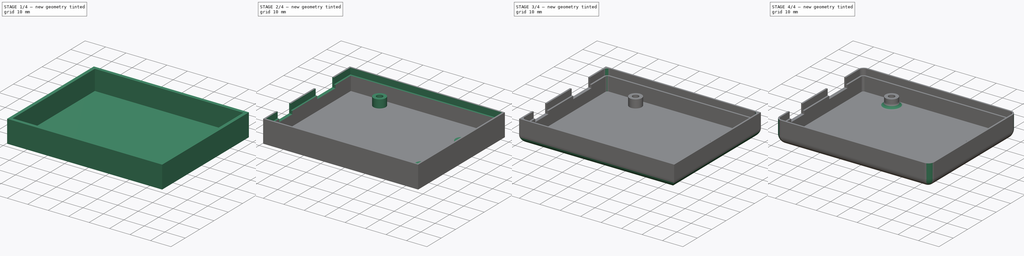
[diagram: build sequence overview — one tinted view per stage of 4, left to right]
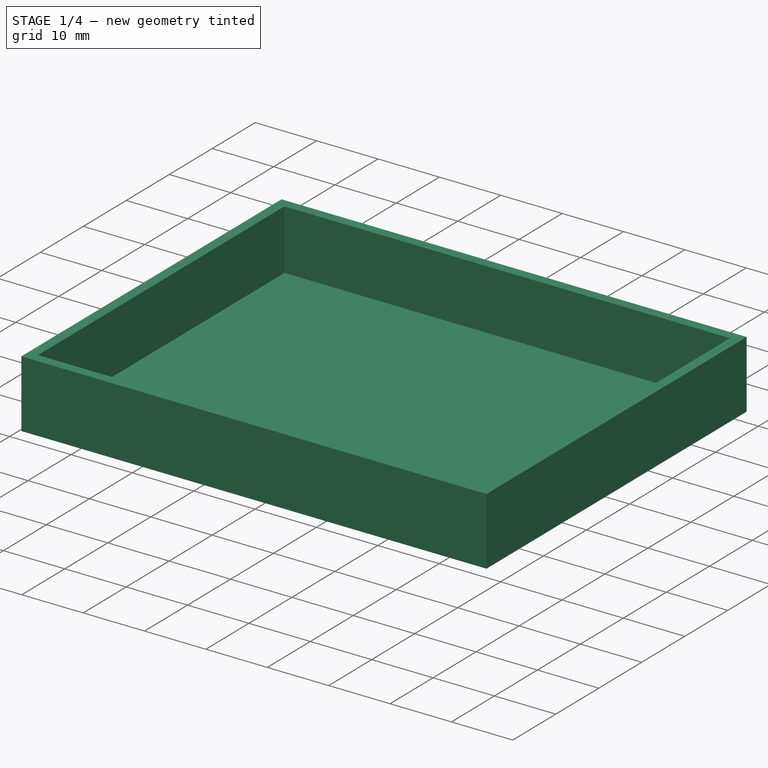
[diagram: stage 1 of 4 — iso view after this stage's code; geometry added in this stage tinted green]
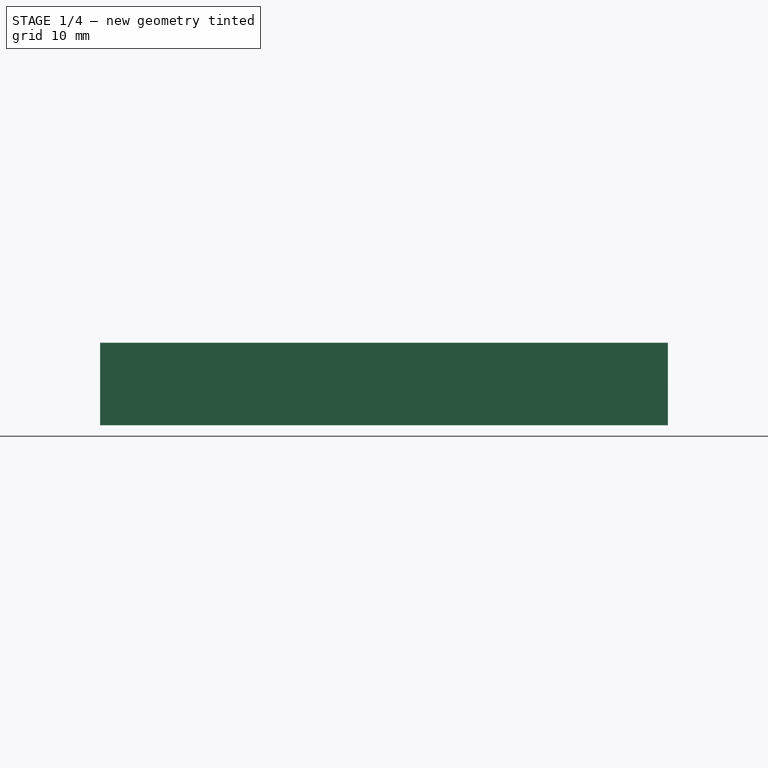
[diagram: stage 1 of 4 — front view after this stage's code; geometry added in this stage tinted green]
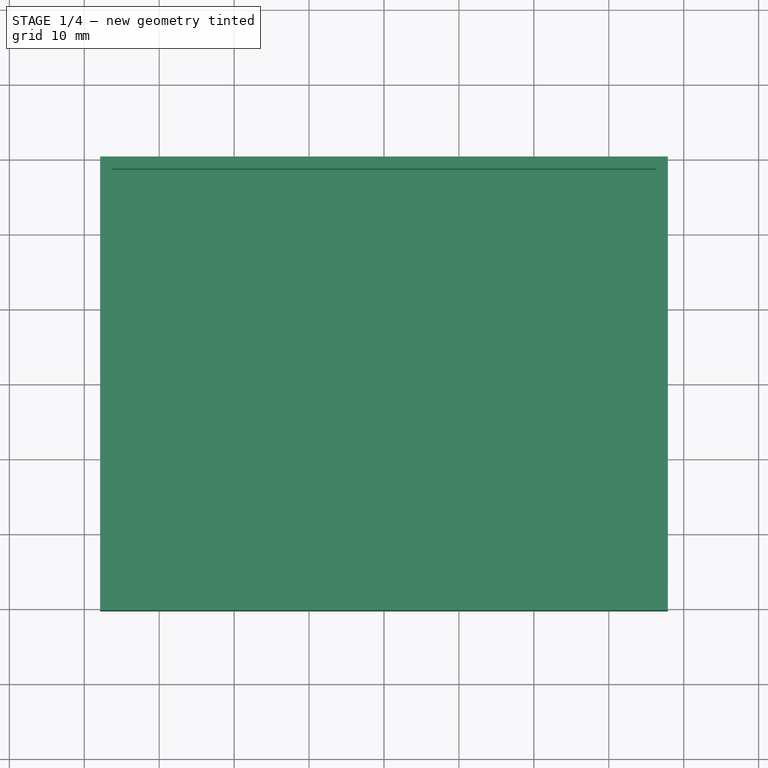
[diagram: stage 1 of 4 — top view after this stage's code; geometry added in this stage tinted green]
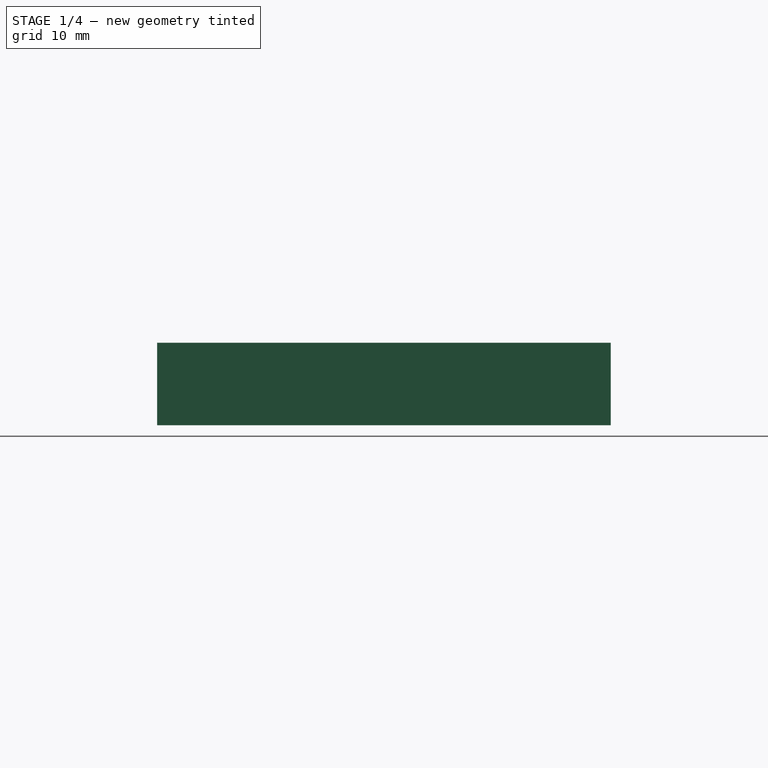
[diagram: stage 1 of 4 — right view after this stage's code; geometry added in this stage tinted green]
FCSTD DOCUMENT  (FreeCAD 0.17R11284 (Git))
Label: Arduino_Uno_spreadsheet
License: All rights reserved
LicenseURL: http://en.wikipedia.org/wiki/All_rights_reserved
objects: Sketcher::SketchObject×6, PartDesign::Fillet×5, PartDesign::Pocket×3, PartDesign::Plane×3, PartDesign::Pad×2, Spreadsheet::Sheet×1, TechDraw::DrawSVGTemplate×1, PartDesign::Body×1, App::Part×1, TechDraw::DrawViewPart×1, TechDraw::DrawViewSection×1, TechDraw::DrawPage×1
note: 25 computed .brp shape members not serialized (recipe doc carries the construction recipe); baked Part::Feature solids carry a one-line shape summary decoded from their .brp

FEATURE [Sketcher::SketchObject] Sketch  label="Arduino Outer Limit"
  MapMode = 5
  Support = -> [XY_Plane001]
  sketch-geometry (4):
    g0: LineSegment StartX=-34.29 StartY=26.67 StartZ=0 EndX=34.29 EndY=26.67 EndZ=0
    g1: LineSegment StartX=34.29 StartY=26.67 StartZ=0 EndX=34.29 EndY=-26.67 EndZ=0
    g2: LineSegment StartX=34.29 StartY=-26.67 StartZ=0 EndX=-34.29 EndY=-26.67 EndZ=0
    g3: LineSegment StartX=-34.29 StartY=-26.67 StartZ=0 EndX=-34.29 EndY=26.67 EndZ=0
  constraints (12):
    c: Coincident(g0,g1)
    c: Coincident(g1,g2)
    c: Coincident(g2,g3)
    c: Coincident(g3,g0)
    c: Horizontal(g0)
    c: Horizontal(g2)
    c: Vertical(g1)
    c: Vertical(g3)
    c: DistanceY(g3,g3) = 53.34
    c: DistanceX(g2,g2) = 68.58
    c: Symmetric(g2,g1,g-2)
    c: Symmetric(g0,g2,g-1)
FEATURE [Sketcher::SketchObject] Sketch001  label="Outer Shell"
  ExternalGeometry = -> [Sketch]
  MapMode = 5
  Support = -> [XY_Plane001]
  sketch-geometry (4):
    g0: LineSegment StartX=-37.89 StartY=30.27 StartZ=0 EndX=37.89 EndY=30.27 EndZ=0
    g1: LineSegment StartX=37.89 StartY=30.27 StartZ=0 EndX=37.89 EndY=-30.27 EndZ=0
    g2: LineSegment StartX=37.89 StartY=-30.27 StartZ=0 EndX=-37.89 EndY=-30.27 EndZ=0
    g3: LineSegment StartX=-37.89 StartY=-30.27 StartZ=0 EndX=-37.89 EndY=30.27 EndZ=0
  constraints (13):
    c: Coincident(g0,g1)
    c: Coincident(g1,g2)
    c: Coincident(g2,g3)
    c: Coincident(g3,g0)
    c: Horizontal(g0)
    c: Horizontal(g2)
    c: Vertical(g1)
    c: Vertical(g3)
    c: Symmetric(g0,g0,g-2)
    c: Symmetric(g0,g2,g-1)
    c: DistanceX(g0,g-1) = 37.89
    c: DistanceY(g-1,g0) = 30.27
    c: DistanceY(g-3,g0) = 3.6
FEATURE [PartDesign::Pad] Pad  label="OuterShell"
  Length = 11
  Length2 = 1
  Profile = -> Sketch001
  Type = 0
FEATURE [Sketcher::SketchObject] Sketch002
  MapMode = 5
  Placement = pos=(0,0,11) rot=(0,0,1;0rad)
  Support = -> [Pad]
  sketch-geometry (4):
    g0: LineSegment StartX=-36.29 StartY=28.67 StartZ=0 EndX=36.29 EndY=28.67 EndZ=0
    g1: LineSegment StartX=36.29 StartY=28.67 StartZ=0 EndX=36.29 EndY=-28.67 EndZ=0
    g2: LineSegment StartX=36.29 StartY=-28.67 StartZ=0 EndX=-36.29 EndY=-28.67 EndZ=0
    g3: LineSegment StartX=-36.29 StartY=-28.67 StartZ=0 EndX=-36.29 EndY=28.67 EndZ=0
  constraints (12):
    c: Coincident(g0,g1)
    c: Coincident(g1,g2)
    c: Coincident(g2,g3)
    c: Coincident(g3,g0)
    c: Horizontal(g0)
    c: Horizontal(g2)
    c: Vertical(g1)
    c: Vertical(g3)
    c: Symmetric(g0,g2,g-1)
    c: Symmetric(g0,g0,g-2)
    c: DistanceX(g0,g-1) = 36.29
    c: DistanceY(g-1,g0) = 28.67
FEATURE [PartDesign::Pocket] Pocket
  Length = 9.8
  Profile = -> Sketch002
  Type = 0
  expr: Length = OuterShell.Length - 1.2mm
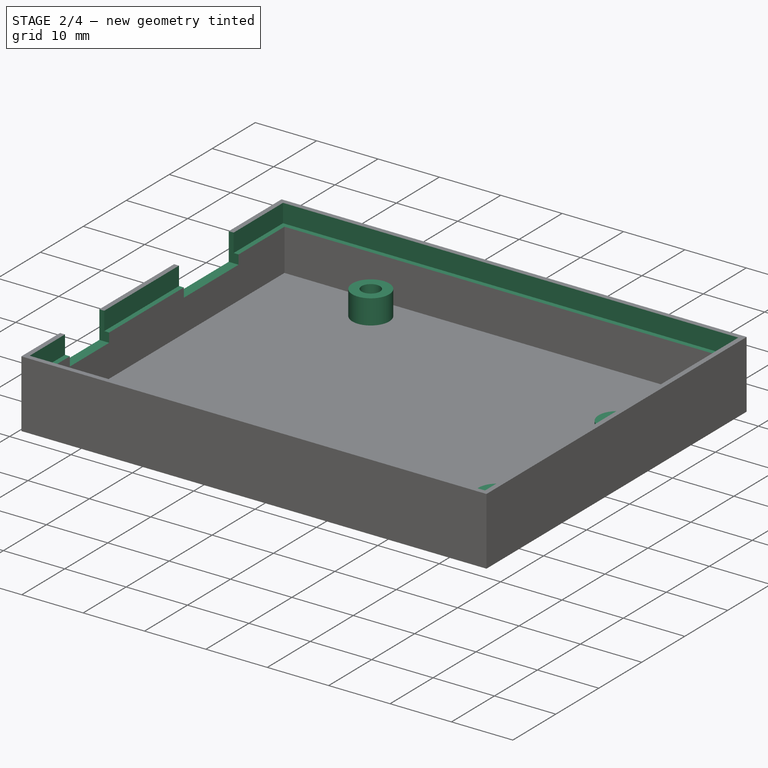
[diagram: stage 2 of 4 — iso view after this stage's code; geometry added in this stage tinted green]
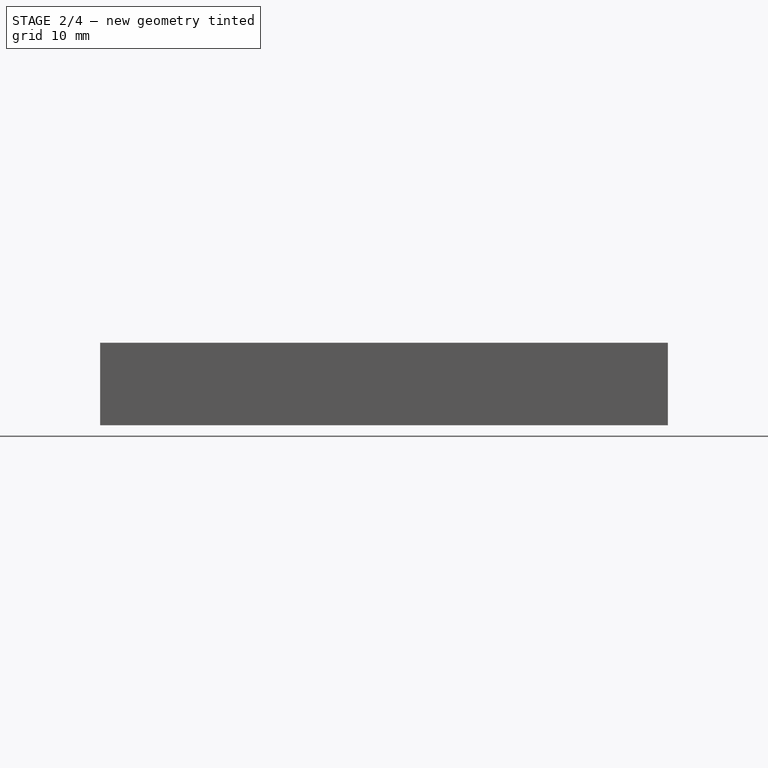
[diagram: stage 2 of 4 — front view after this stage's code; geometry added in this stage tinted green]
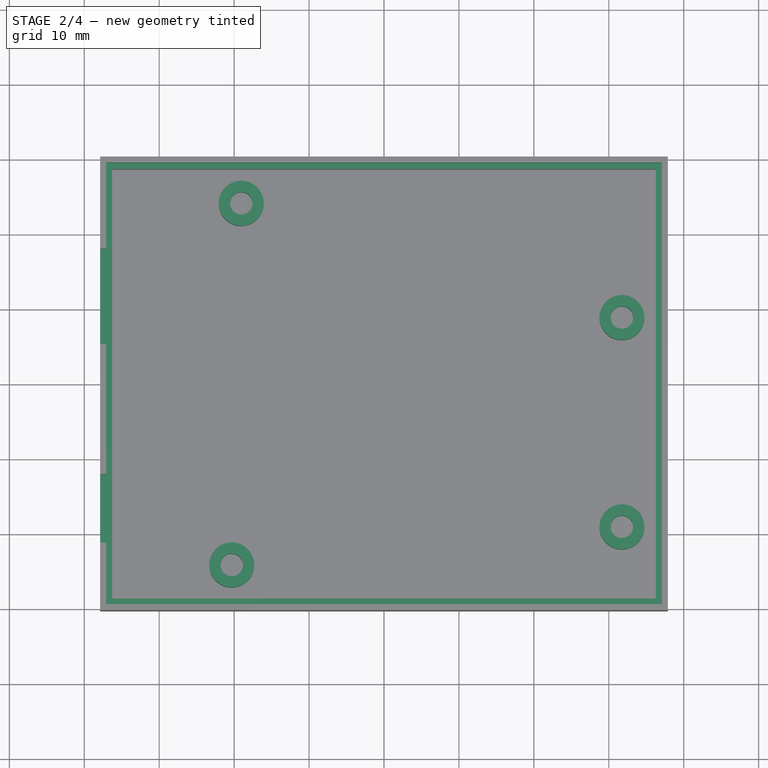
[diagram: stage 2 of 4 — top view after this stage's code; geometry added in this stage tinted green]
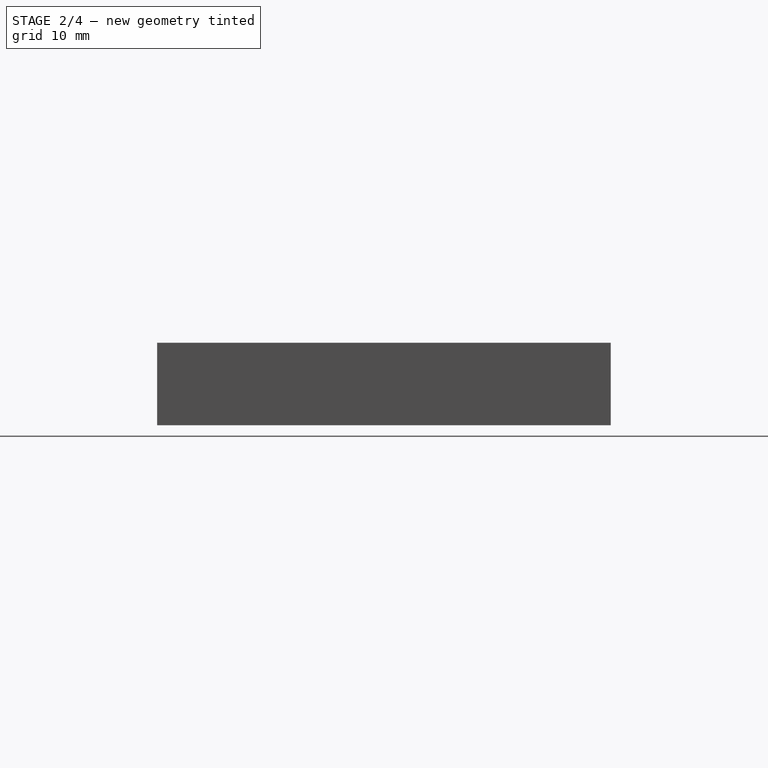
[diagram: stage 2 of 4 — right view after this stage's code; geometry added in this stage tinted green]
FEATURE [Spreadsheet::Sheet] Spreadsheet
  cells = A1=Object; B1=Measurement; C1=Alias Name; D1=Notes; A2=Nozzle Size; B2==0.40000000000000002mm; A3=Circuit Board Thickness; B3(BoardThickness)==1.54mm; C3="BoardThickness"; D3=Exactly 1/16th of an Inch; A4=Nozzle Size  x 4; B4(WallThickness)==B2 * 4; C4="WallThickness"; A5=Floor; B5(Floor)==1.2mm; C5="Floor"; A6=Wall Offset From Board; B6(BoardClearance)=2; C6="BoardClearance"; A7=Post Height; B7(PostHeight)==4mm; C7="PostHeight"; A8=Hole Diameter; B8==0.125in; A9=Screw Hole Clearance; B9=1; A10=Radius; B10(HoleRadius)==B8 / 2; C10="HoleRadius"; A11=Radius + Clearance; A13=Clearance; B13(Clearance)==0.25mm; C13="Clearance"; A15=Sketch Name; B15=Sketch Names; A16=Sketch Label; B16==Sketch.Label; C16==<<Arduino Outer Limit>>.Label; A17=Sketch001 Label; B17==Sketch001.Label; C17==<<Outer Shell>>.Label; A18=Sketch002 Label; B18==Sketch002.Label; A19=Sketch003 Label; B19==<<Hole Positions>>.Label; C19==<<Hole Positions>>.Label; A20=Sketch004 Label; B20==Sketch004.Label; A21=Sketch005 Label; B21==<<Lid Lip>>.Label; C21==<<Lid Lip>>.Label; A23=Height of Opening ( Floor + Post Height + Board Thickness - Clearance ); B23(OpeningPlaneHeight)==Floor + PostHeight + BoardThickness - Clearance; C23="OpeningPlaneHeight"
FEATURE [Sketcher::SketchObject] Sketch003  label="Hole Positions"
  ExternalGeometry = -> [Sketch]
  MapMode = 5
  Placement = pos=(0,0,1.2) rot=(0,0,1;0rad)
  Support = -> [Pocket]
  expr: Constraints[0] = 3mm
  sketch-geometry (8):
    g0: Circle CenterX=-19.05 CenterY=24.13 CenterZ=0 NormalX=0 NormalY=0 NormalZ=1 Radius=3
    g1: Circle CenterX=31.75 CenterY=8.89 CenterZ=0 NormalX=0 NormalY=0 NormalZ=1 Radius=3
    g2: Circle CenterX=-20.32 CenterY=-24.13 CenterZ=0 NormalX=0 NormalY=0 NormalZ=1 Radius=3
    g3: Circle CenterX=31.75 CenterY=-19.05 CenterZ=0 NormalX=0 NormalY=0 NormalZ=1 Radius=3
    g4: Circle CenterX=-19.05 CenterY=24.13 CenterZ=0 NormalX=0 NormalY=0 NormalZ=1 Radius=1.5
    g5: Circle CenterX=31.75 CenterY=8.89 CenterZ=0 NormalX=0 NormalY=0 NormalZ=1 Radius=1.5
    g6: Circle CenterX=-20.32 CenterY=-24.13 CenterZ=0 NormalX=0 NormalY=0 NormalZ=1 Radius=1.5
    g7: Circle CenterX=31.75 CenterY=-19.05 CenterZ=0 NormalX=0 NormalY=0 NormalZ=1 Radius=1.5
  constraints (20):
    c: Radius(g0) = 3
    c: Equal(g0,g2)
    c: Equal(g0,g3)
    c: Equal(g0,g1)
    c: DistanceY(g3,g1) = 27.94
    c: DistanceX(g0,g1) = 50.8
    c: DistanceX(g2,g0) = 1.27
    c: DistanceY(g2,g3) = 5.08
    c: DistanceY(g-3,g2) = 2.54
    c: DistanceY(g1,g0) = 15.24
    c: DistanceX(g0,g3) = 50.8
    c: Coincident(g4,g0)
    c: Coincident(g5,g1)
    c: Coincident(g6,g2)
    c: Coincident(g7,g3)
    c: Radius(g4) = 1.5
    c: Equal(g4,g5)
    c: Equal(g4,g7)
    c: Equal(g4,g6)
    c: DistanceX(g-3,g2) = 13.97
FEATURE [PartDesign::Plane] DatumPlane
  MapMode = 5
  Placement = pos=(0,0,11) rot=(0,0,1;0rad)
  expr: Placement.Base.z = OuterShell.Length
FEATURE [Sketcher::SketchObject] Sketch005  label="Lid Lip"
  MapMode = 5
  Placement = pos=(0,0,11) rot=(0,0,1;0rad)
  Support = -> [DatumPlane]
  sketch-geometry (4):
    g0: LineSegment StartX=-37.09 StartY=29.47 StartZ=0 EndX=37.09 EndY=29.47 EndZ=0
    g1: LineSegment StartX=37.09 StartY=29.47 StartZ=0 EndX=37.09 EndY=-29.47 EndZ=0
    g2: LineSegment StartX=37.09 StartY=-29.47 StartZ=0 EndX=-37.09 EndY=-29.47 EndZ=0
    g3: LineSegment StartX=-37.09 StartY=-29.47 StartZ=0 EndX=-37.09 EndY=29.47 EndZ=0
  constraints (11):
    c: Coincident(g0,g1)
    c: Coincident(g1,g2)
    c: Horizontal(g0)
    c: Horizontal(g2)
    c: Vertical(g1)
    c: Coincident(g3,g0)
    c: Coincident(g3,g2)
    c: Symmetric(g2,g1,g-2)
    c: Symmetric(g0,g2,g-1)
    c: DistanceX(g0,g-1) = 37.09
    c: DistanceY(g-1,g0) = 29.47
FEATURE [PartDesign::Pocket] Pocket001  label="Lid Lip001"
  BaseFeature = -> Pocket
  Length = 3
  Profile = -> Sketch005
  Type = 0
FEATURE [PartDesign::Pad] Pad001  label="Posts"
  BaseFeature = -> Pocket001
  Length = 4
  Length2 = 100
  Profile = -> Sketch003
  Type = 0
FEATURE [TechDraw::DrawSVGTemplate] Template  label=" "
  EditableTexts = Designed_by_Name=Designed by Name; Drawing_number=Drawing number; FC-Date=Date; FC-SC=Scale; FC-SH=Sheet; FC-Title=Title; Subtitle=Subtitle; Weight=Weight
  Height = 215.9
  Orientation = 1
  Width = 279.4
FEATURE [PartDesign::Plane] DatumPlane001
  MapMode = 5
  Placement = pos=(0,0,5.2) rot=(0,0,1;0rad)
FEATURE [PartDesign::Plane] DatumPlane002
  MapMode = 5
  Placement = pos=(-37.89,0,0) rot=(0.57735,-0.57735,-0.57735;2.0944rad)
  Support = -> [Pad001]
FEATURE [Sketcher::SketchObject] Sketch004
  MapMode = 5
  Placement = pos=(-37.89,0,0) rot=(0.57735,-0.57735,-0.57735;2.0944rad)
  Support = -> [Pad001]
  sketch-geometry (8):
    g0: LineSegment StartX=-17.98 StartY=17.29 StartZ=0 EndX=-5.26 EndY=17.29 EndZ=0
    g1: LineSegment StartX=-5.26 StartY=17.29 StartZ=0 EndX=-5.26 EndY=6.49 EndZ=0
    g2: LineSegment StartX=-5.26 StartY=6.49 StartZ=0 EndX=-17.98 EndY=6.49 EndZ=0
    g3: LineSegment StartX=-17.98 StartY=6.49 StartZ=0 EndX=-17.98 EndY=17.29 EndZ=0
    g4: LineSegment StartX=12.12 StartY=17.29 StartZ=0 EndX=21.26 EndY=17.29 EndZ=0
    g5: LineSegment StartX=21.26 StartY=17.29 StartZ=0 EndX=21.26 EndY=6.49 EndZ=0
    g6: LineSegment StartX=21.26 StartY=6.49 StartZ=0 EndX=12.12 EndY=6.49 EndZ=0
    g7: LineSegment StartX=12.12 StartY=6.49 StartZ=0 EndX=12.12 EndY=17.29 EndZ=0
  constraints (23):
    c: Coincident(g0,g1)
    c: Coincident(g1,g2)
    c: Coincident(g3,g0)
    c: Horizontal(g0)
    c: Horizontal(g2)
    c: Vertical(g1)
    c: Vertical(g3)
    c: Coincident(g4,g5)
    c: Coincident(g5,g6)
    c: Coincident(g6,g7)
    c: Coincident(g7,g4)
    c: Horizontal(g4)
    c: Horizontal(g6)
    c: Vertical(g5)
    c: Vertical(g7)
    c: Coincident(g2,g3)
    c: DistanceY(g5,g5) = 10.8
    c: DistanceX(g4,g4) = 9.14
    c: DistanceX(g0,g0) = 12.72
    c: DistanceX(g1,g6) = 17.38
    c: Equal(g1,g7)
    c: DistanceY(g-1,g5) = 6.49
    c: DistanceY(g-1,g1) = 6.49
FEATURE [PartDesign::Pocket] Pocket002
  BaseFeature = -> Pad001
  Length = 5
  Profile = -> Sketch004
  Type = 0
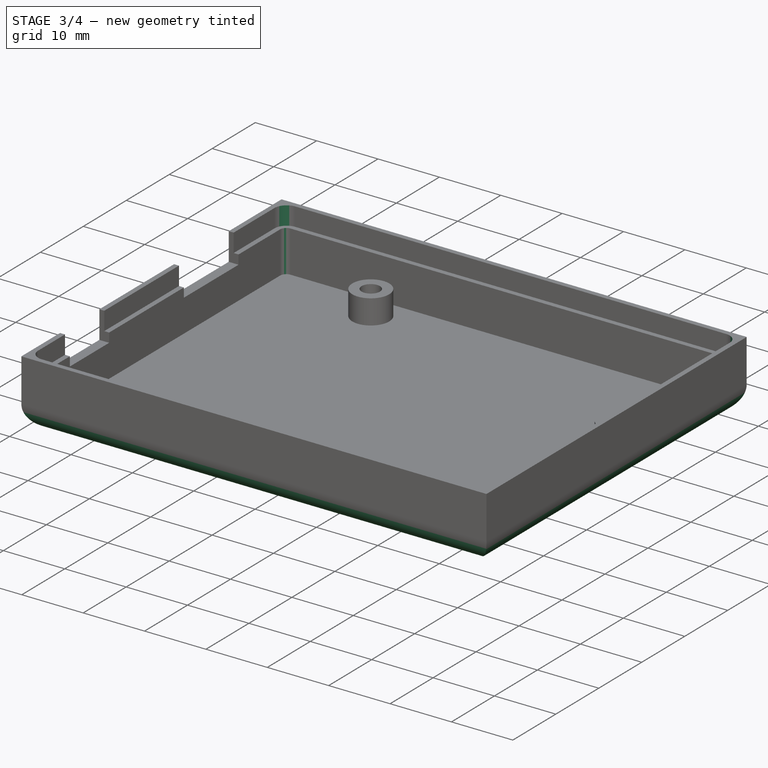
[diagram: stage 3 of 4 — iso view after this stage's code; geometry added in this stage tinted green]
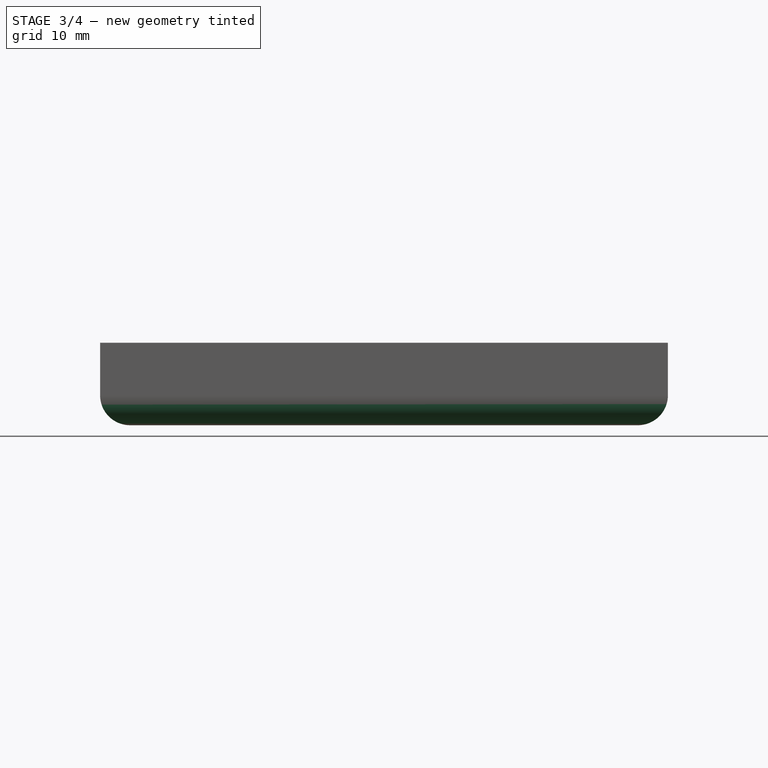
[diagram: stage 3 of 4 — front view after this stage's code; geometry added in this stage tinted green]
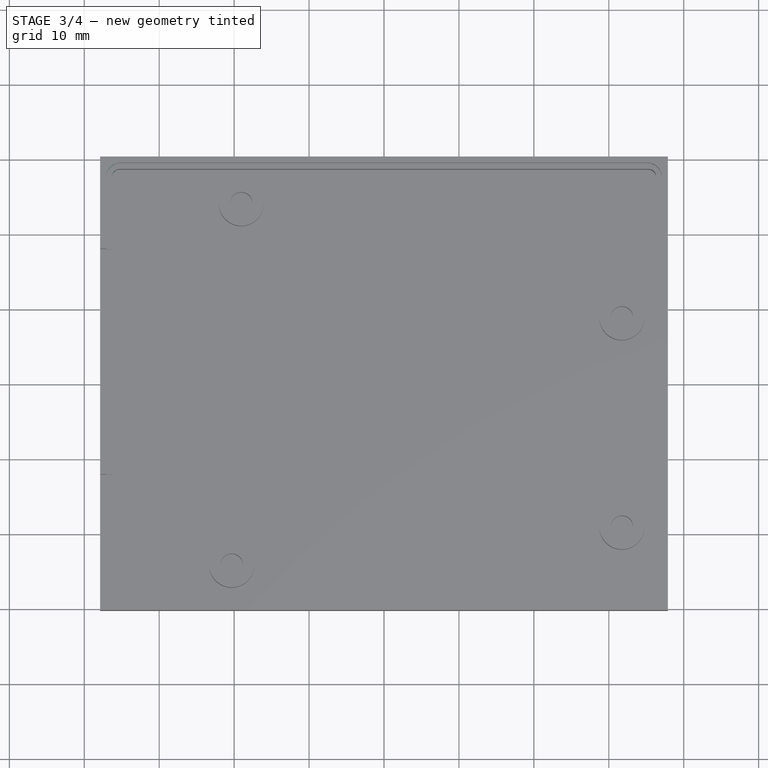
[diagram: stage 3 of 4 — top view after this stage's code; geometry added in this stage tinted green]
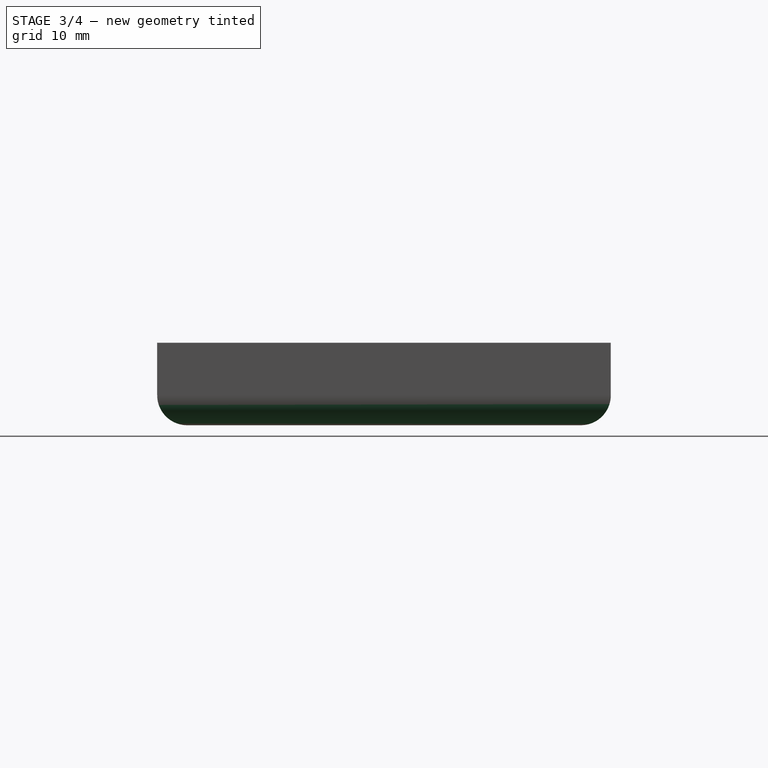
[diagram: stage 3 of 4 — right view after this stage's code; geometry added in this stage tinted green]
FEATURE [PartDesign::Fillet] Fillet
  Base = -> Pocket002 [Face4]
  BaseFeature = -> Pocket002
  Radius = 4
FEATURE [PartDesign::Fillet] Fillet001
  Base = -> Fillet [Edge76,Edge78,Edge74,Edge72]
  BaseFeature = -> Fillet
  Radius = 1
FEATURE [PartDesign::Fillet] Fillet002
  Base = -> Fillet001 [Edge48,Edge36,Edge40,Edge44]
  BaseFeature = -> Fillet001
  Radius = 2
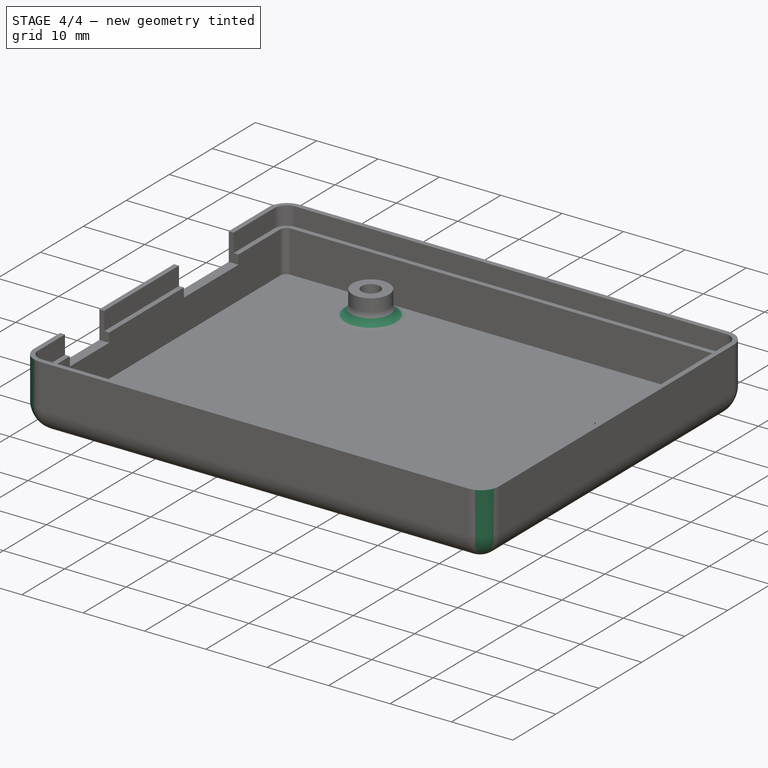
[diagram: stage 4 of 4 — iso view after this stage's code; geometry added in this stage tinted green]
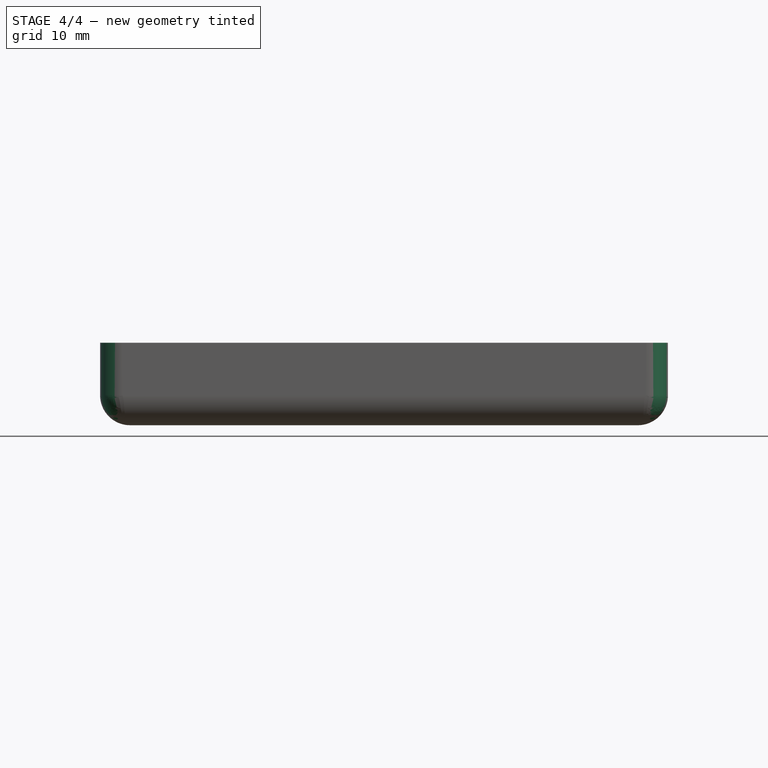
[diagram: stage 4 of 4 — front view after this stage's code; geometry added in this stage tinted green]
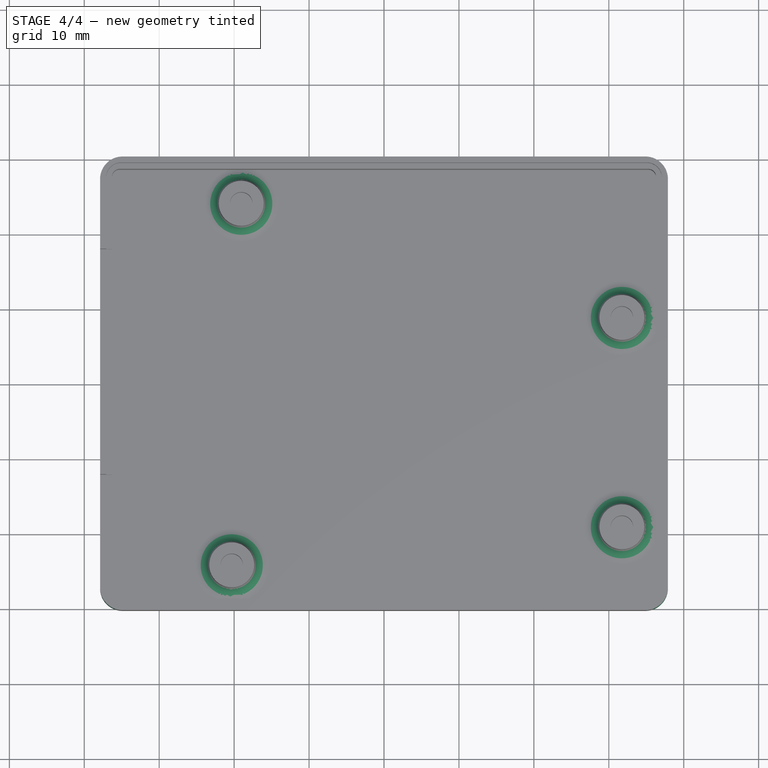
[diagram: stage 4 of 4 — top view after this stage's code; geometry added in this stage tinted green]
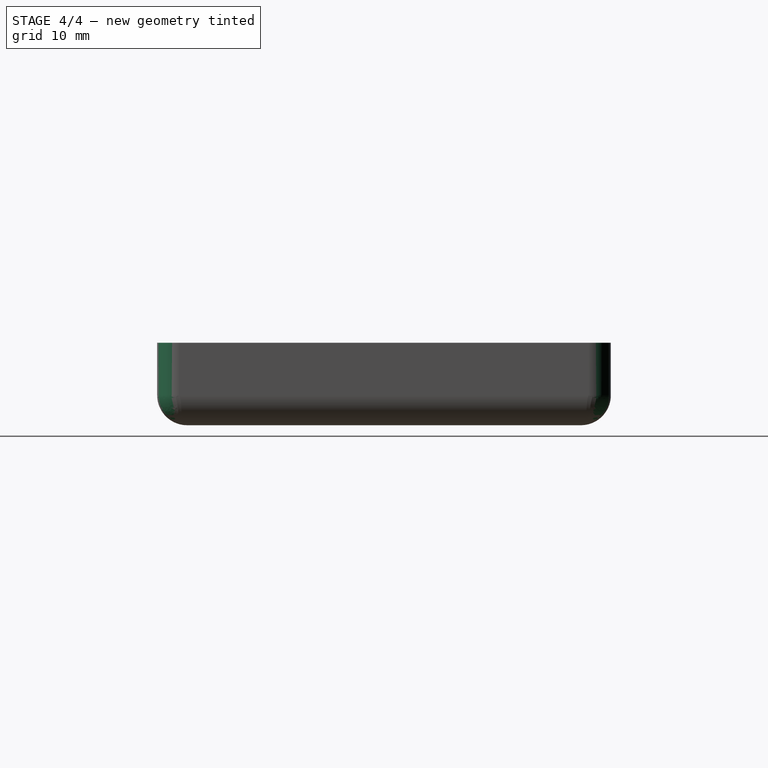
[diagram: stage 4 of 4 — right view after this stage's code; geometry added in this stage tinted green]
FEATURE [PartDesign::Fillet] Fillet003
  Base = -> Fillet002 [Edge76,Edge98,Edge96,Edge74]
  BaseFeature = -> Fillet002
  Radius = 3
FEATURE [PartDesign::Fillet] Fillet004
  Base = -> Fillet003 [Edge128,Edge127,Edge126,Edge125]
  BaseFeature = -> Fillet003
  Radius = 2
FEATURE [PartDesign::Body] Body
  Group = -> [Sketch,Sketch001,Pad,Sketch002,Pocket,Sketch003,Sketch004,DatumPlane,Sketch005,Pocket001,Pad001,DatumPlane001,DatumPlane002,Pocket002,Fillet,Fillet001,Fillet002,Fillet003,Fillet004]
  Origin = -> BodyOrigin
  Tip = -> Fillet004
FEATURE [App::Part] Part
  Group = -> [Body]
  License = CC BY 3.0
  LicenseURL = http://creativecommons.org/licenses/by/3.0/
  Origin = -> PartOrigin
FEATURE [TechDraw::DrawViewPart] View
  ArcCenterMarks = true
  CenterScale = 2
  Direction = (0,0,1)
  HardHidden = false
  HiddenWidth = 0.15
  HorizCenterLine = false
  IsoCount = 0
  IsoHidden = false
  IsoVisible = false
  IsoWidth = 0.3
  KeepLabel = false
  LineWidth = 0.35
  Rotation = 0
  ScaleType = 0
  SeamHidden = false
  SeamVisible = false
  ShowSectionLine = true
  SmoothHidden = false
  SmoothVisible = false
  Source = -> Fillet004
  VertCenterLine = false
  X = 190.553
  Y = 124.733
FEATURE [TechDraw::DrawViewSection] Section  label="Section A - A"
  ArcCenterMarks = true
  BaseView = -> View
  CenterScale = 2
  Direction = (1,0,0)
  HardHidden = false
  HatchScale = 1
  HiddenWidth = 0.15
  HorizCenterLine = false
  IsoCount = 0
  IsoHidden = false
  IsoVisible = false
  IsoWidth = 0.3
  KeepLabel = false
  LineWidth = 0.35
  NameGeomPattern = Diamond
  Rotation = 0
  ScaleType = 0
  SeamHidden = false
  SeamVisible = false
  SectionDirection = 1
  SectionNormal = (1,0,0)
  SectionOrigin = (0,0,5.5)
  SectionSymbol = A
  ShowSectionLine = true
  SmoothHidden = false
  SmoothVisible = false
  Source = -> Fillet004
  VertCenterLine = false
  X = 84.2316
  Y = 122.457
FEATURE [TechDraw::DrawPage] Page
  ProjectionType = 0
  Template = -> Template
  Views = -> [View,Section]
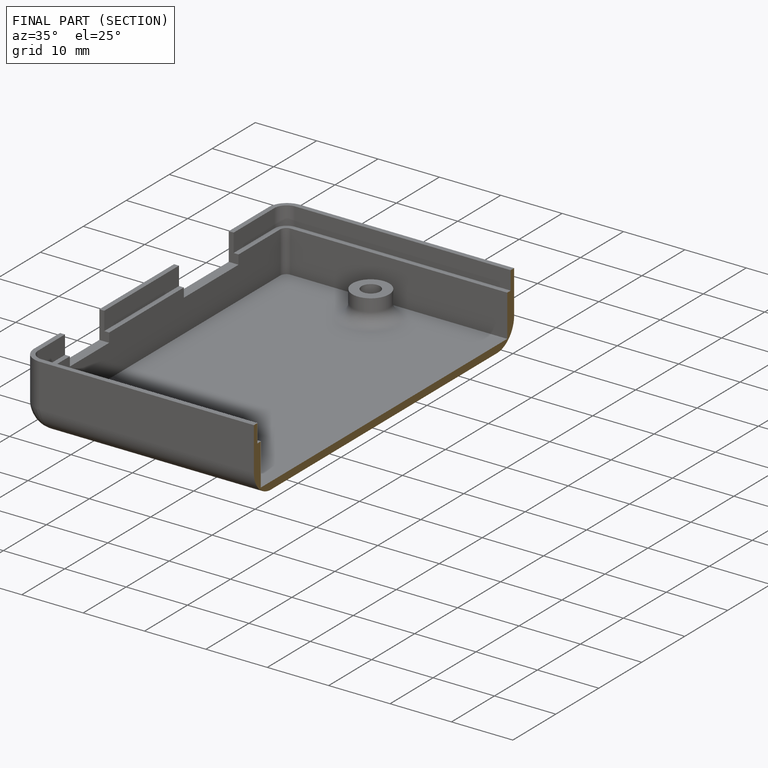
[diagram: finished part — half-section view (interior)]
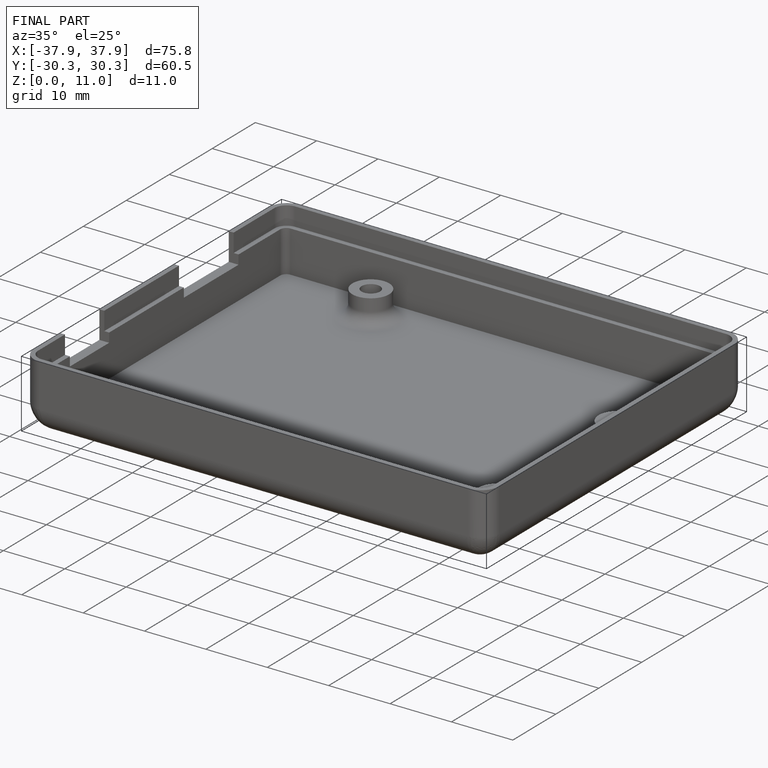
[diagram: finished part — iso view with bounding-box wireframe]
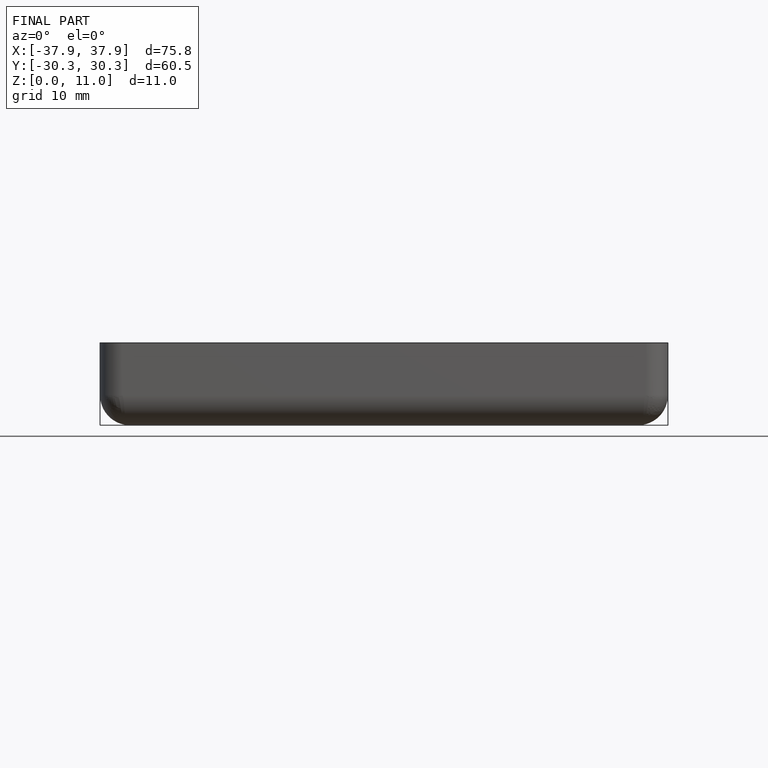
[diagram: finished part — front view with bounding-box wireframe]
